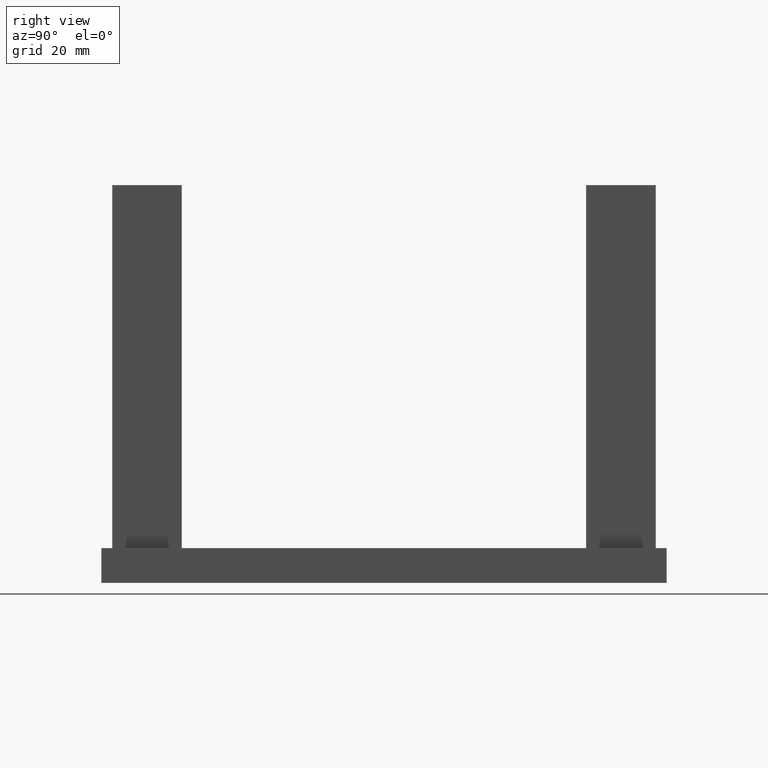
[diagram: clean part render]
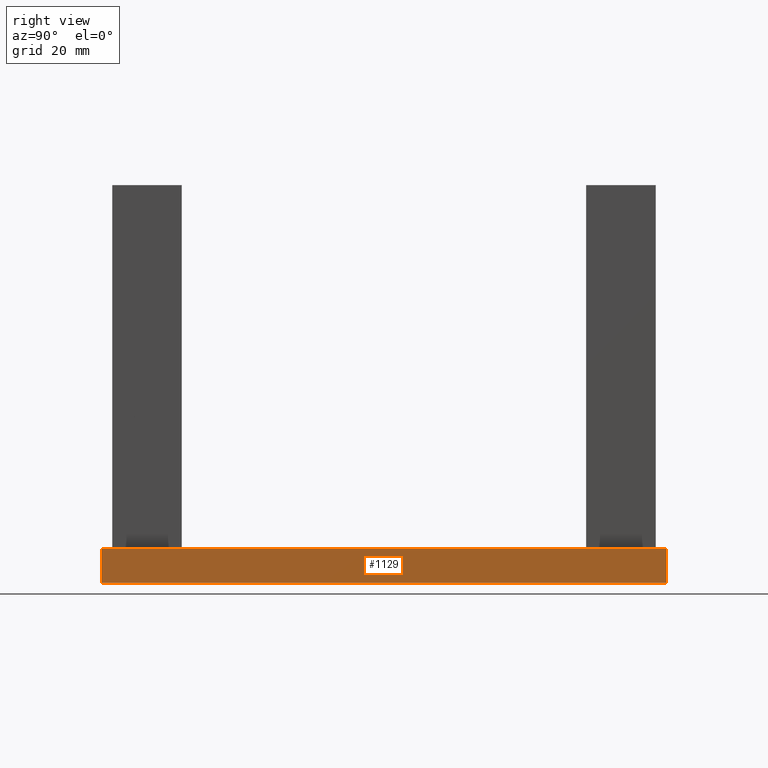
[diagram: same view with one face highlighted and labeled with its STEP entity id]
A machine part, right view. The second image highlights one B-rep face of the part: STEP entity #1129.
In plain terms, the highlighted planar face has unit normal (-1, 0, 0).
Its self-contained STEP definition (entity closure, byte-faithful):
#574 = VECTOR ( 'NONE', #17188, 1000.000000000000000 ) ;
#1129 = ADVANCED_FACE ( 'NONE', ( #14622 ), #3589, .F. ) ;
#1232 = CARTESIAN_POINT ( 'NONE',  ( 27.49999999999999600, 8.000000000000000000, 64.99999999999998600 ) ) ;
#3334 = DIRECTION ( 'NONE',  ( -0.0000000000000000000, -1.000000000000000000, -0.0000000000000000000 ) ) ;
#3589 = PLANE ( 'NONE',  #19937 ) ;
#4366 = CARTESIAN_POINT ( 'NONE',  ( 27.49999999999999600, 0.0000000000000000000, 64.99999999999998600 ) ) ;
#4583 = CARTESIAN_POINT ( 'NONE',  ( 27.49999999999999600, 8.000000000000000000, -65.00000000000001400 ) ) ;
#5553 = LINE ( 'NONE', #14683, #6971 ) ;
#6971 = VECTOR ( 'NONE', #7690, 1000.000000000000000 ) ;
#7340 = VECTOR ( 'NONE', #3334, 1000.000000000000000 ) ;
#7358 = VERTEX_POINT ( 'NONE', #4366 ) ;
#7690 = DIRECTION ( 'NONE',  ( -0.0000000000000000000, -1.000000000000000000, -0.0000000000000000000 ) ) ;
#8405 = VERTEX_POINT ( 'NONE', #9191 ) ;
#8631 = EDGE_CURVE ( 'NONE', #22924, #9550, #12459, .T. ) ;
#9191 = CARTESIAN_POINT ( 'NONE',  ( 27.49999999999999600, 0.0000000000000000000, -65.00000000000001400 ) ) ;
#9276 = VECTOR ( 'NONE', #16372, 1000.000000000000000 ) ;
#9550 = VERTEX_POINT ( 'NONE', #10828 ) ;
#9881 = LINE ( 'NONE', #1232, #7340 ) ;
#10014 = EDGE_CURVE ( 'NONE', #22924, #7358, #9881, .T. ) ;
#10731 = EDGE_LOOP ( 'NONE', ( #15905, #19105, #13443, #11919 ) ) ;
#10828 = CARTESIAN_POINT ( 'NONE',  ( 27.49999999999999600, 8.000000000000000000, -65.00000000000001400 ) ) ;
#11312 = CARTESIAN_POINT ( 'NONE',  ( 27.49999999999999600, 8.000000000000000000, -65.00000000000001400 ) ) ;
#11735 = EDGE_CURVE ( 'NONE', #9550, #8405, #5553, .T. ) ;
#11919 = ORIENTED_EDGE ( 'NONE', *, *, #10014, .T. ) ;
#12459 = LINE ( 'NONE', #4583, #574 ) ;
#13443 = ORIENTED_EDGE ( 'NONE', *, *, #8631, .F. ) ;
#14545 = CARTESIAN_POINT ( 'NONE',  ( 27.49999999999999600, 8.000000000000000000, 64.99999999999998600 ) ) ;
#14622 = FACE_OUTER_BOUND ( 'NONE', #10731, .T. ) ;
#14683 = CARTESIAN_POINT ( 'NONE',  ( 27.49999999999999600, 8.000000000000000000, -65.00000000000001400 ) ) ;
#15118 = DIRECTION ( 'NONE',  ( -1.000000000000000000, 0.0000000000000000000, 0.0000000000000000000 ) ) ;
#15905 = ORIENTED_EDGE ( 'NONE', *, *, #23216, .T. ) ;
#16372 = DIRECTION ( 'NONE',  ( -0.0000000000000000000, -0.0000000000000000000, -1.000000000000000000 ) ) ;
#17188 = DIRECTION ( 'NONE',  ( -0.0000000000000000000, -0.0000000000000000000, -1.000000000000000000 ) ) ;
#18824 = LINE ( 'NONE', #21509, #9276 ) ;
#19105 = ORIENTED_EDGE ( 'NONE', *, *, #11735, .F. ) ;
#19937 = AXIS2_PLACEMENT_3D ( 'NONE', #11312, #15118, #20197 ) ;
#20197 = DIRECTION ( 'NONE',  ( 0.0000000000000000000, 0.0000000000000000000, 1.000000000000000000 ) ) ;
#21509 = CARTESIAN_POINT ( 'NONE',  ( 27.49999999999999600, 0.0000000000000000000, -65.00000000000001400 ) ) ;
#22924 = VERTEX_POINT ( 'NONE', #14545 ) ;
#23216 = EDGE_CURVE ( 'NONE', #7358, #8405, #18824, .T. ) ;